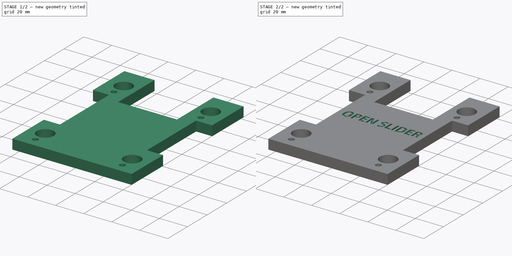
[diagram: build sequence overview — one tinted view per stage of 2, left to right]
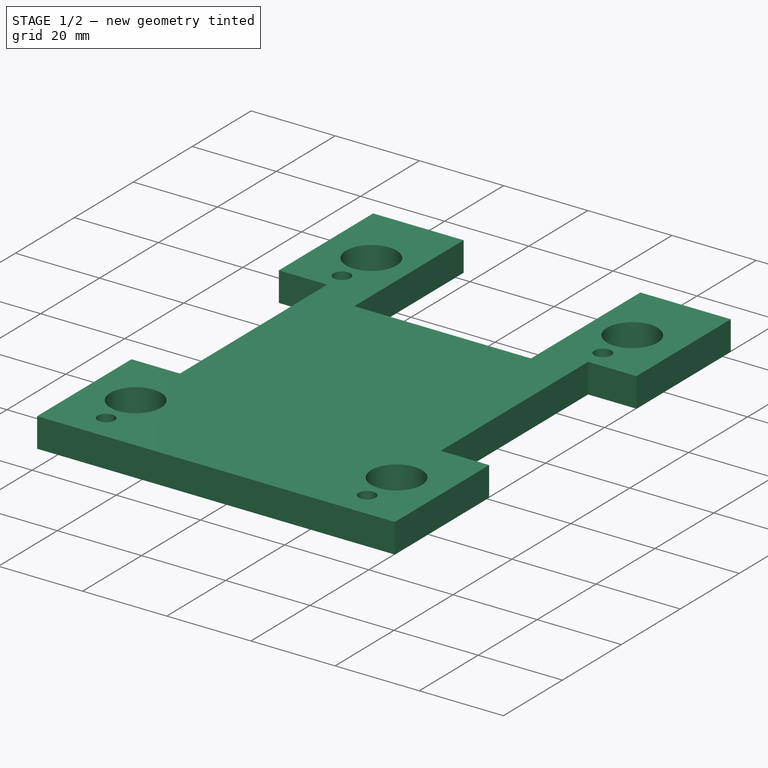
[diagram: stage 1 of 2 — iso view after this stage's code; geometry added in this stage tinted green]
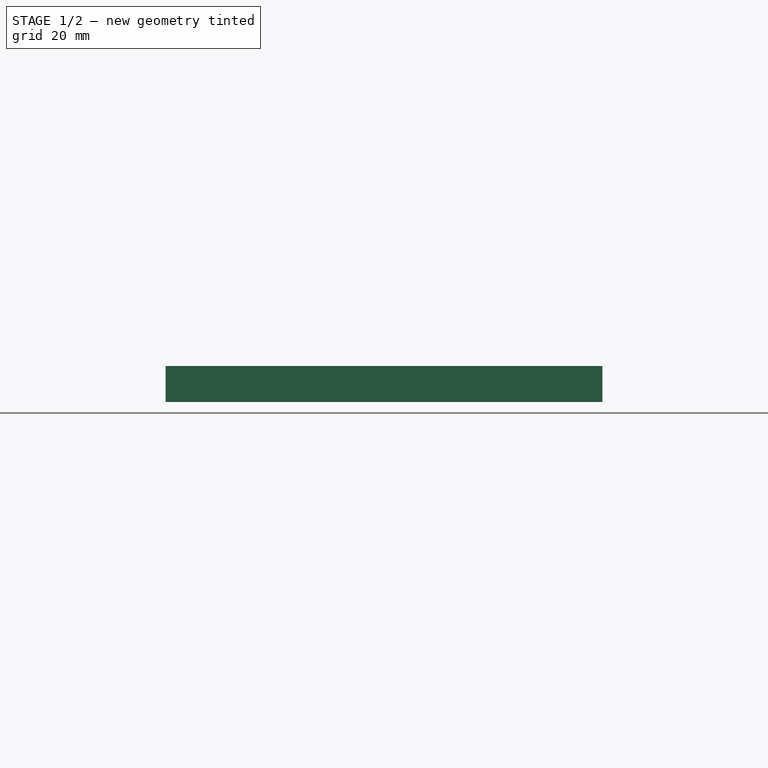
[diagram: stage 1 of 2 — front view after this stage's code; geometry added in this stage tinted green]
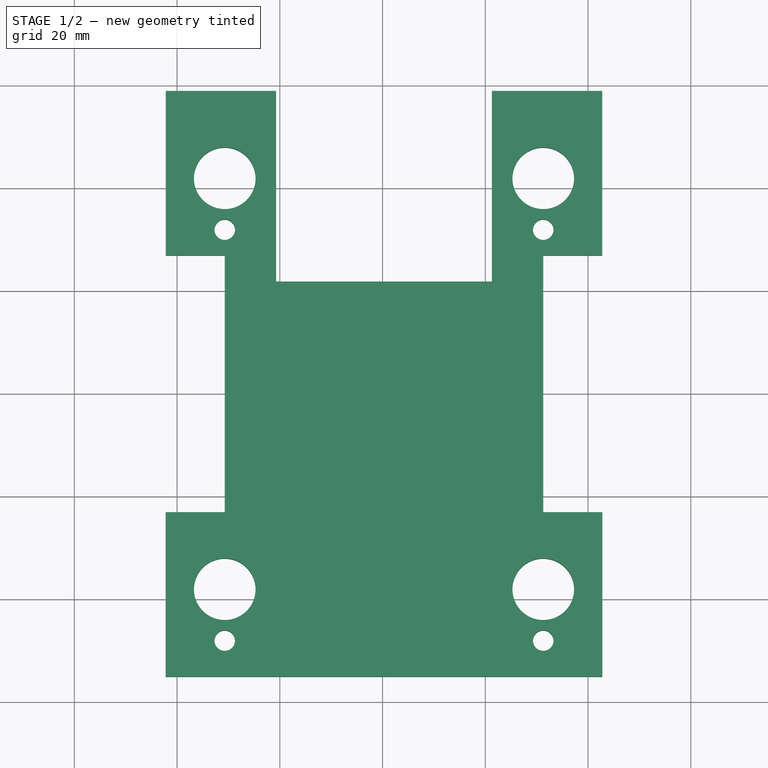
[diagram: stage 1 of 2 — top view after this stage's code; geometry added in this stage tinted green]
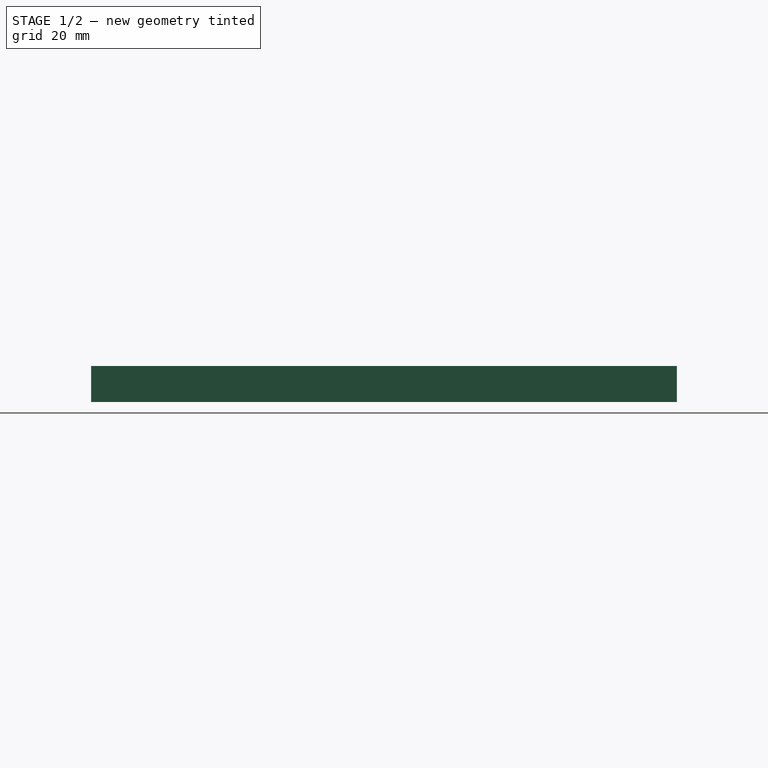
[diagram: stage 1 of 2 — right view after this stage's code; geometry added in this stage tinted green]
FCSTD DOCUMENT  (FreeCAD 0.16R6703 (Git))
Label: BuildPlateCover
License: All rights reserved
LicenseURL: http://en.wikipedia.org/wiki/All_rights_reserved
objects: Sketcher::SketchObject×1, PartDesign::Pad×1, Part::Part2DObjectPython×1, PartDesign::Pocket×1
note: 6 computed .brp shape members not serialized (recipe doc carries the construction recipe); baked Part::Feature solids carry a one-line shape summary decoded from their .brp

FEATURE [Sketcher::SketchObject] Sketch
  sketch-geometry (35):
    g0: LineSegment StartX=-30.7225 StartY=26.8967 StartZ=0 EndX=-30.7225 EndY=-23.1033 EndZ=0
    g1: LineSegment StartX=31.2775 StartY=26.8967 StartZ=0 EndX=31.2775 EndY=-23.1033 EndZ=0
    g2: LineSegment [constr] StartX=-30.7225 StartY=26.8967 StartZ=0 EndX=31.2775 EndY=26.8967 EndZ=0
    g3: LineSegment StartX=-42.2225 StartY=-55.1033 StartZ=0 EndX=42.7775 EndY=-55.1033 EndZ=0
    g4: LineSegment StartX=-30.7225 StartY=-23.1033 StartZ=0 EndX=-42.2225 EndY=-23.1033 EndZ=0
    g5: LineSegment StartX=-42.2225 StartY=-23.1033 StartZ=0 EndX=-42.2225 EndY=-55.1033 EndZ=0
    g6: LineSegment StartX=31.2775 StartY=-23.1033 StartZ=0 EndX=42.7775 EndY=-23.1033 EndZ=0
    g7: LineSegment StartX=42.7775 StartY=-23.1033 StartZ=0 EndX=42.7775 EndY=-55.1033 EndZ=0
    g8: LineSegment StartX=-30.7225 StartY=26.8967 StartZ=0 EndX=-42.2167 EndY=26.8967 EndZ=0
    g9: LineSegment StartX=-42.2167 StartY=26.8967 StartZ=0 EndX=-42.2167 EndY=58.8967 EndZ=0
    g10: LineSegment StartX=42.7717 StartY=58.8967 StartZ=0 EndX=42.7717 EndY=26.8967 EndZ=0
    g11: LineSegment StartX=42.7717 StartY=26.8967 StartZ=0 EndX=31.2775 EndY=26.8967 EndZ=0
    g12: LineSegment [constr] StartX=-30.7225 StartY=-23.1033 StartZ=0 EndX=-30.7225 EndY=-38.1033 EndZ=0
    g13: LineSegment [constr] StartX=-30.7225 StartY=26.8967 StartZ=0 EndX=-30.7225 EndY=41.8967 EndZ=0
    g14: LineSegment [constr] StartX=31.2775 StartY=26.8967 StartZ=0 EndX=31.2775 EndY=41.8967 EndZ=0
    g15: LineSegment [constr] StartX=31.2775 StartY=-23.1033 StartZ=0 EndX=31.2775 EndY=-38.1033 EndZ=0
    g16: LineSegment [constr] StartX=-30.7225 StartY=-23.1033 StartZ=0 EndX=31.2775 EndY=-23.1033 EndZ=0
    g17: Circle CenterX=-30.7225 CenterY=41.8967 CenterZ=0 NormalX=0 NormalY=0 NormalZ=1 Radius=6
    g18: Circle CenterX=31.2775 CenterY=41.8967 CenterZ=0 NormalX=0 NormalY=0 NormalZ=1 Radius=6
    g19: Circle CenterX=31.2775 CenterY=-38.1033 CenterZ=0 NormalX=0 NormalY=0 NormalZ=1 Radius=6
    g20: Circle CenterX=-30.7225 CenterY=-38.1033 CenterZ=0 NormalX=0 NormalY=0 NormalZ=1 Radius=6
    g21: LineSegment StartX=-42.2167 StartY=58.8967 StartZ=0 EndX=-20.7225 EndY=58.8967 EndZ=0
    g22: LineSegment StartX=-20.7225 StartY=58.8967 StartZ=0 EndX=-20.7225 EndY=21.7971 EndZ=0
    g23: LineSegment StartX=-20.7225 StartY=21.7971 StartZ=0 EndX=21.2775 EndY=21.7971 EndZ=0
    g24: LineSegment StartX=21.2775 StartY=21.7971 StartZ=0 EndX=21.2775 EndY=58.8967 EndZ=0
    g25: LineSegment StartX=21.2775 StartY=58.8967 StartZ=0 EndX=42.7717 EndY=58.8967 EndZ=0
    g26: LineSegment [constr] StartX=22.9754 StartY=26.8967 StartZ=0 EndX=22.9754 EndY=21.8967 EndZ=0
    g27: LineSegment [constr] StartX=-30.7225 StartY=-38.1033 StartZ=0 EndX=-30.7225 EndY=-48.1033 EndZ=0
    g28: Circle CenterX=-30.7225 CenterY=-48.1033 CenterZ=0 NormalX=0 NormalY=0 NormalZ=1 Radius=2
    g29: LineSegment [constr] StartX=31.2775 StartY=-38.1033 StartZ=0 EndX=31.2775 EndY=-48.1033 EndZ=0
    g30: LineSegment [constr] StartX=-30.7225 StartY=41.8967 StartZ=0 EndX=-30.7225 EndY=31.8967 EndZ=0
    g31: LineSegment [constr] StartX=31.2775 StartY=41.8967 StartZ=0 EndX=31.2775 EndY=31.8967 EndZ=0
    g32: Circle CenterX=31.2775 CenterY=-48.1033 CenterZ=0 NormalX=0 NormalY=0 NormalZ=1 Radius=2
    g33: Circle CenterX=-30.7225 CenterY=31.8967 CenterZ=0 NormalX=0 NormalY=0 NormalZ=1 Radius=2
    g34: Circle CenterX=31.2775 CenterY=31.8967 CenterZ=0 NormalX=0 NormalY=0 NormalZ=1 Radius=2
  constraints (92):
    c: Vertical(g0)
    c: Vertical(g1)
    c: Equal(g0,g1)
    c: Coincident(g2,g0)
    c: Coincident(g2,g1)
    c: Horizontal(g2)
    c: DistanceX(g2,g2) = 62
    c: DistanceY(g1,g1) = 50
    c: Horizontal(g3)
    c: DistanceX(g3,g3) = 85
    c: Coincident(g4,g0)
    c: Horizontal(g4)
    c: Coincident(g5,g4)
    c: Coincident(g5,g3)
    c: Vertical(g5)
    c: Coincident(g6,g1)
    c: Horizontal(g6)
    c: Coincident(g7,g6)
    c: Coincident(g7,g3)
    c: Vertical(g7)
    c: Equal(g4,g6)
    c: DistanceY(g7,g7) = 32
    c: Coincident(g8,g0)
    c: Horizontal(g8)
    c: Coincident(g9,g8)
    c: Vertical(g9)
    c: Vertical(g10)
    c: Coincident(g11,g10)
    c: Coincident(g11,g1)
    c: Horizontal(g11)
    c: Equal(g8,g11)
    c: DistanceY(g10,g10) = 32
    c: Coincident(g12,g0)
    c: Vertical(g12)
    c: Coincident(g13,g0)
    c: Vertical(g13)
    c: Coincident(g14,g1)
    c: Vertical(g14)
    c: Coincident(g15,g1)
    c: Vertical(g15)
    c: Coincident(g16,g0)
    c: Coincident(g16,g1)
    c: Equal(g13,g14)
    c: Equal(g14,g15)
    c: Equal(g15,g12)
    c: DistanceY(g12,g12) = 15
    c: Coincident(g17,g13)
    c: Coincident(g18,g14)
    c: Coincident(g19,g15)
    c: Coincident(g20,g12)
    c: Equal(g17,g18)
    c: Equal(g18,g19)
    c: Equal(g19,g20)
    c: Radius(g20) = 6
    c: Coincident(g21,g9)
    c: Horizontal(g21)
    c: Coincident(g22,g21)
    c: Vertical(g22)
    c: Coincident(g23,g22)
    c: Horizontal(g23)
    c: Coincident(g24,g23)
    c: Coincident(g25,g24)
    c: Coincident(g25,g10)
    c: Equal(g10,g9)
    c: Equal(g7,g5)
    c: Horizontal(g25)
    c: Vertical(g24)
    c: DistanceX(g23,g23) = 42
    c: Equal(g21,g25)
    c: PointOnObject(g26,g2)
    c: Vertical(g26)
    c: DistanceY(g26,g26) = 5
    c: Coincident(g27,g12)
    c: Coincident(g28,g27)
    c: Radius(g28) = 2
    c: Coincident(g29,g15)
    c: Vertical(g29)
    c: Coincident(g30,g13)
    c: Vertical(g30)
    c: Coincident(g31,g14)
    c: Vertical(g31)
    c: Coincident(g32,g29)
    c: Equal(g28,g32)
    c: Coincident(g33,g30)
    c: Coincident(g34,g31)
    c: Equal(g33,g34)
    c: Equal(g34,g32)
    c: Vertical(g27)
    c: Equal(g27,g29)
    c: Equal(g29,g30)
    c: Equal(g30,g31)
    c: DistanceY(g27,g27) = 10
FEATURE [PartDesign::Pad] Pad
  Length = 7
  Length2 = 100
  Sketch = -> Sketch
  Type = 0
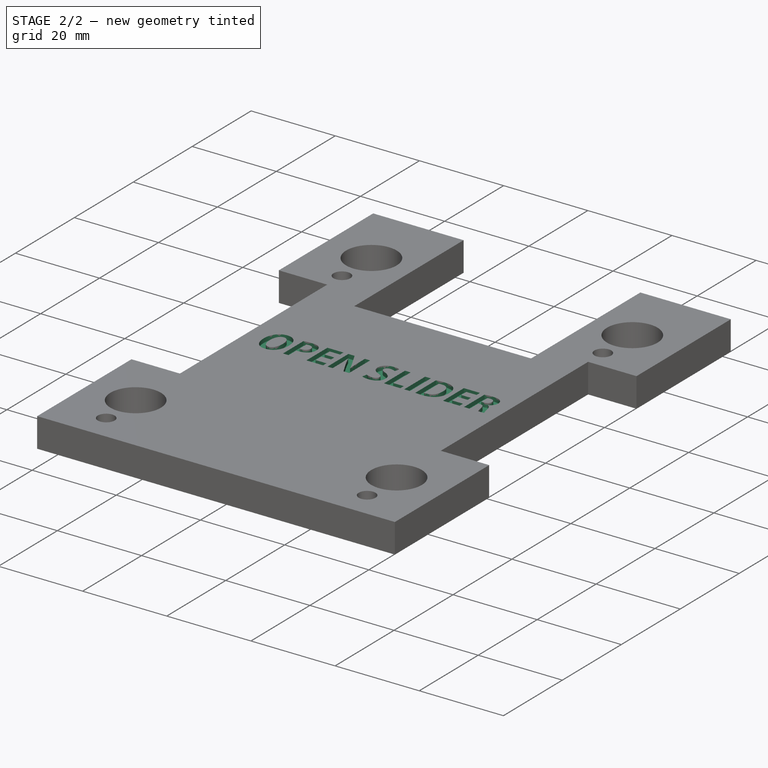
[diagram: stage 2 of 2 — iso view after this stage's code; geometry added in this stage tinted green]
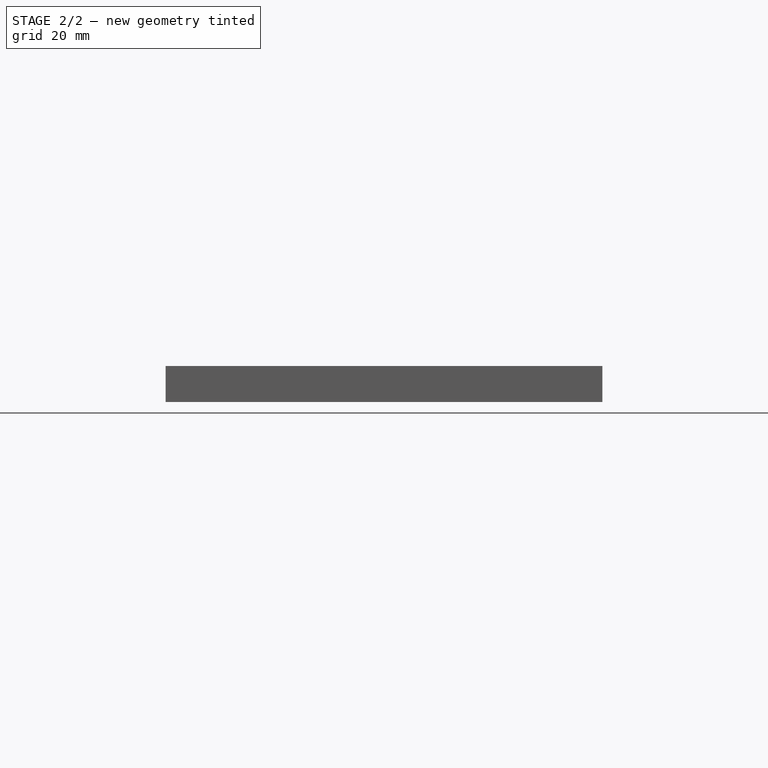
[diagram: stage 2 of 2 — front view after this stage's code; geometry added in this stage tinted green]
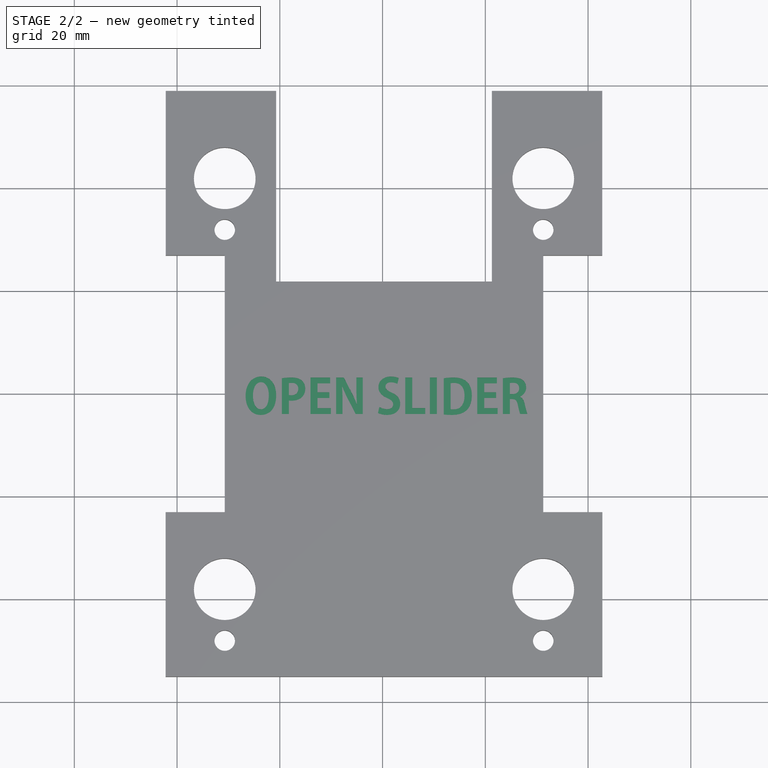
[diagram: stage 2 of 2 — top view after this stage's code; geometry added in this stage tinted green]
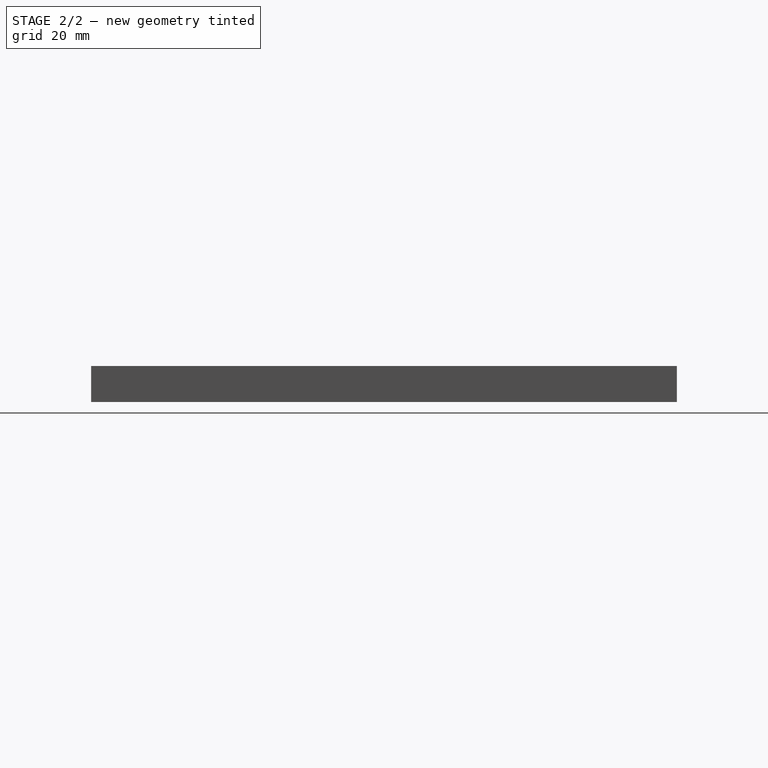
[diagram: stage 2 of 2 — right view after this stage's code; geometry added in this stage tinted green]
FEATURE [Part::Part2DObjectPython] ShapeString001  # Draft 2D object (typed FeaturePython)
  FontFile = C:/AdobeGothicStd-Bold.otf
  Placement = pos=(-27,-4,7) rot=(0,0,1;0rad)
  Size = 6
  String = OPEN SLIDER
  Support = -> Pad
  Tracking = 0
FEATURE [PartDesign::Pocket] Pocket
  Length = 1
  Sketch = -> ShapeString001
  Type = 0
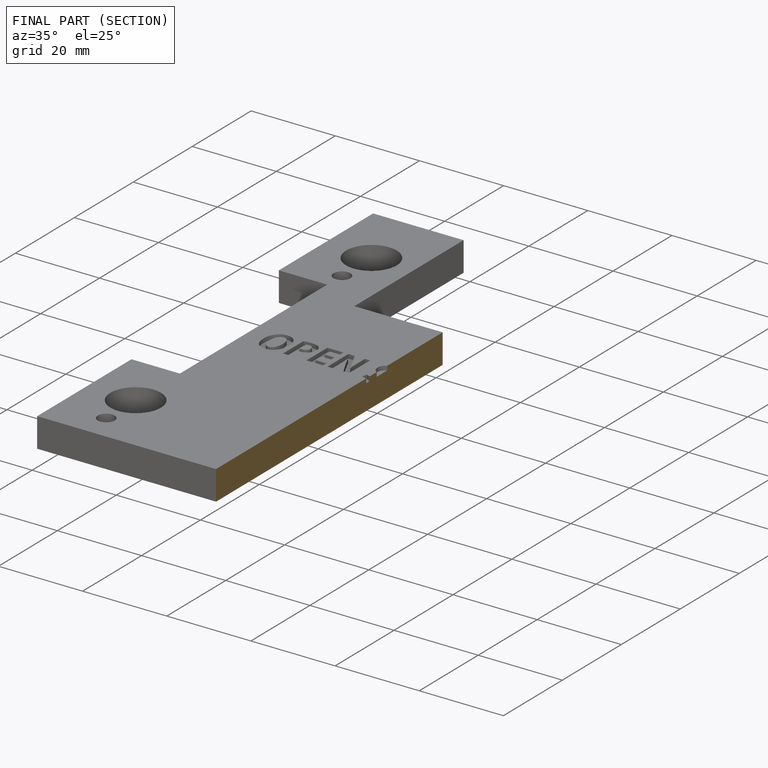
[diagram: finished part — half-section view (interior)]
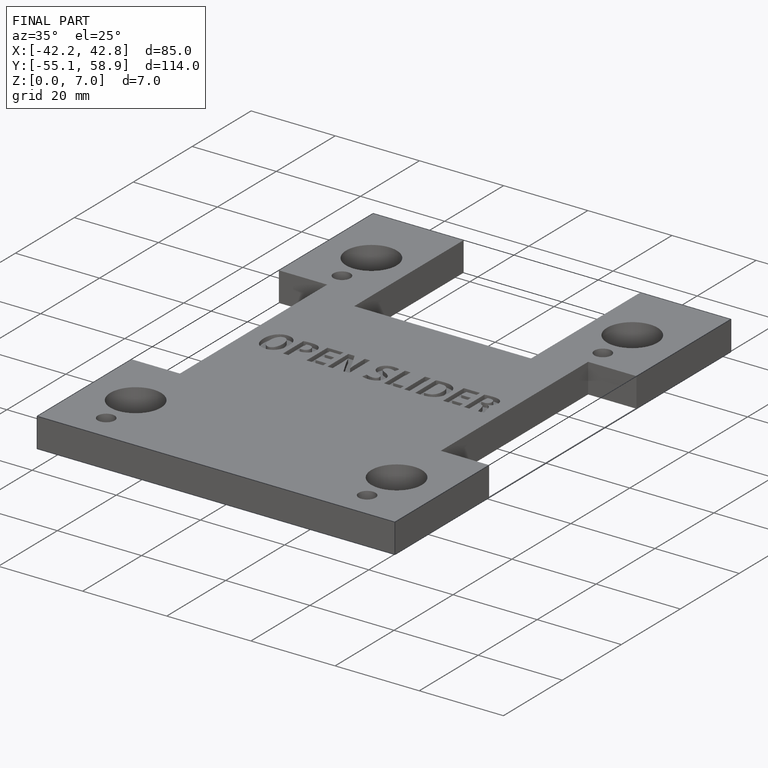
[diagram: finished part — iso view with bounding-box wireframe]
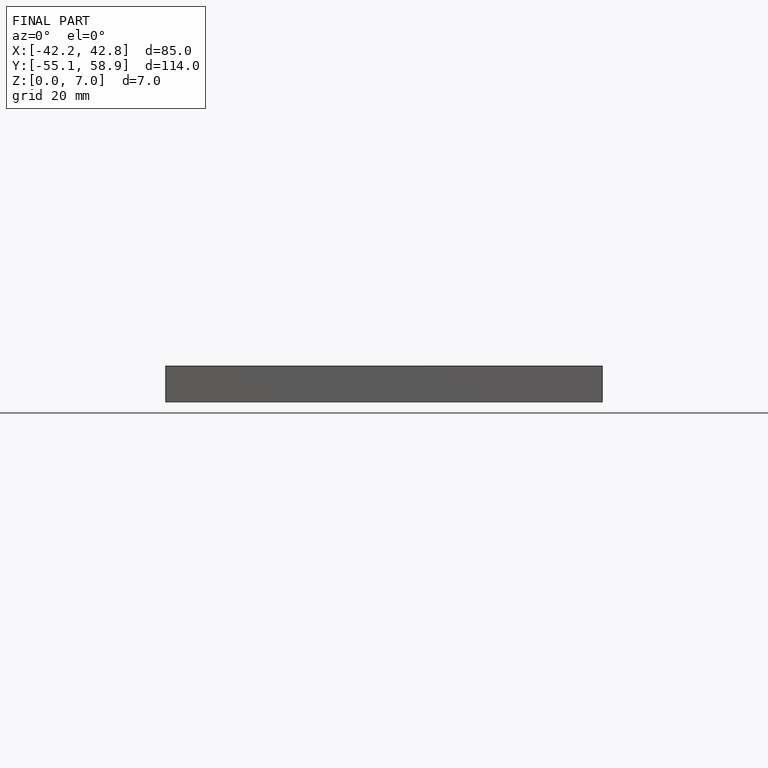
[diagram: finished part — front view with bounding-box wireframe]
